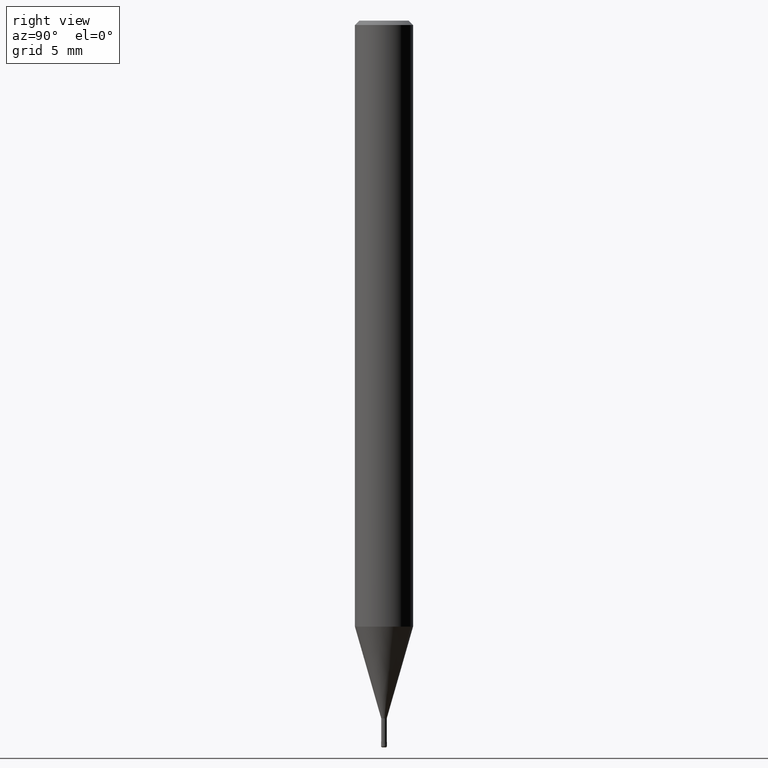
[diagram: clean part render]
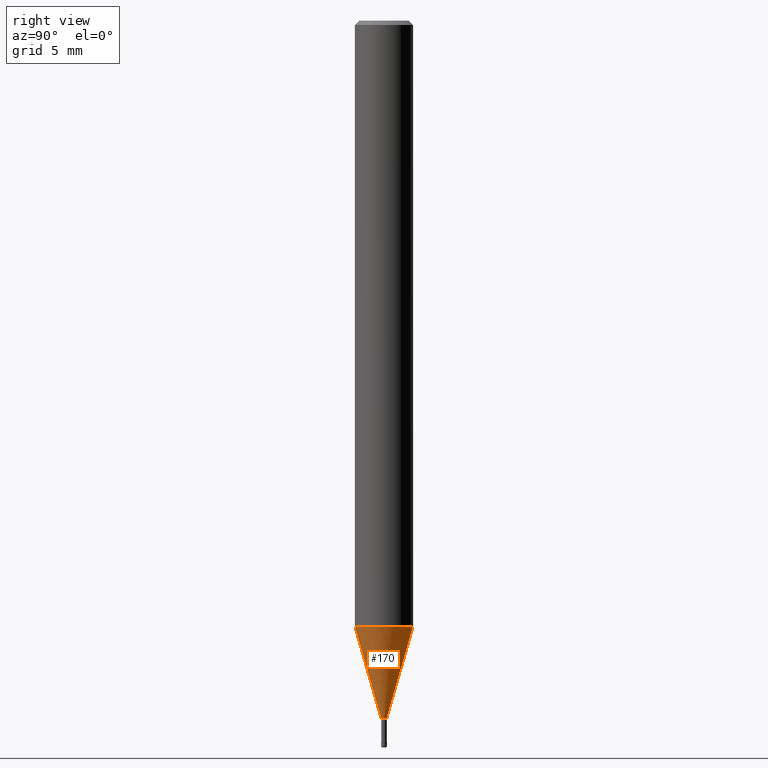
[diagram: same view with one face highlighted and labeled with its STEP entity id]
A machine part, right view. The second image highlights one B-rep face of the part: STEP entity #170.
In plain terms, the highlighted conical surface has half-angle 16.001 deg.
Its self-contained STEP definition (entity closure, byte-faithful):
#102=VERTEX_POINT('',#255);
#116=VERTEX_POINT('',#271);
#132=EDGE_CURVE('',#218,#116,#288,.T.);
#170=ADVANCED_FACE('',(#330),#331,.T.);
#178=VERTEX_POINT('',#340);
#206=EDGE_CURVE('',#102,#178,#373,.T.);
#208=EDGE_CURVE('',#116,#102,#375,.T.);
#212=EDGE_CURVE('',#218,#178,#380,.T.);
#218=VERTEX_POINT('',#388);
#255=CARTESIAN_POINT('',(2.3261397690856E-017,-0.18995,-48.0));
#271=CARTESIAN_POINT('',(0.0,0.18995,-48.0));
#288=LINE('',#461,#462);
#330=FACE_OUTER_BOUND('',#519,.T.);
#331=CONICAL_SURFACE('',#520,1.09495,0.279261921280279);
#340=CARTESIAN_POINT('',(2.44915147732706E-016,-1.99995,-41.688));
#373=LINE('',#569,#570);
#375=CIRCLE('',#573,0.18995);
#380=CIRCLE('',#579,1.99995);
#388=CARTESIAN_POINT('',(0.0,1.99995,-41.688));
#461=CARTESIAN_POINT('',(-1.34088272711781E-016,1.09495,-44.844));
#462=VECTOR('',#642,1.0);
#519=EDGE_LOOP('',(#699,#700,#701,#702));
#520=AXIS2_PLACEMENT_3D('',#703,#704,#705);
#569=CARTESIAN_POINT('',(1.34088272711781E-016,-1.09495,-44.844));
#570=VECTOR('',#767,1.0);
#573=AXIS2_PLACEMENT_3D('',#768,#769,#770);
#579=AXIS2_PLACEMENT_3D('',#777,#778,#779);
#642=DIRECTION('',(3.37558135426109E-017,-0.275646238787252,-0.961259148743169));
#699=ORIENTED_EDGE('',*,*,#132,.F.);
#700=ORIENTED_EDGE('',*,*,#212,.T.);
#701=ORIENTED_EDGE('',*,*,#206,.F.);
#702=ORIENTED_EDGE('',*,*,#208,.F.);
#703=CARTESIAN_POINT('',(0.0,0.0,-44.844));
#704=DIRECTION('',(-0.0,-0.0,1.0));
#705=DIRECTION('',(0.0,1.0,0.0));
#767=DIRECTION('',(3.37558135426109E-017,-0.275646238787252,0.961259148743169));
#768=CARTESIAN_POINT('',(0.0,0.0,-48.0));
#769=DIRECTION('',(0.0,0.0,-1.0));
#770=DIRECTION('',(0.0,1.0,0.0));
#777=CARTESIAN_POINT('',(0.0,0.0,-41.688));
#778=DIRECTION('',(0.0,0.0,-1.0));
#779=DIRECTION('',(0.0,1.0,0.0));